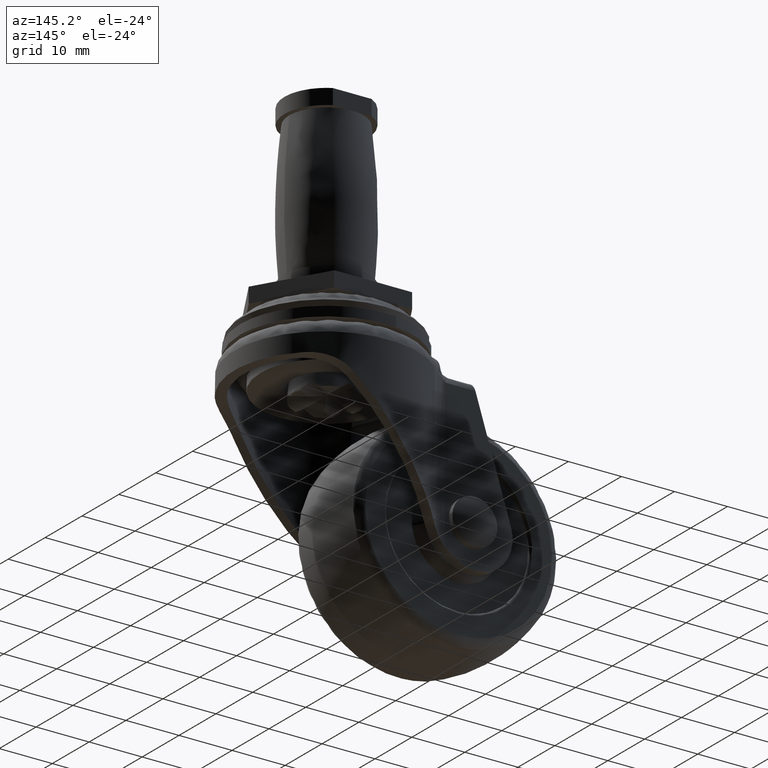
[diagram: clean part render]
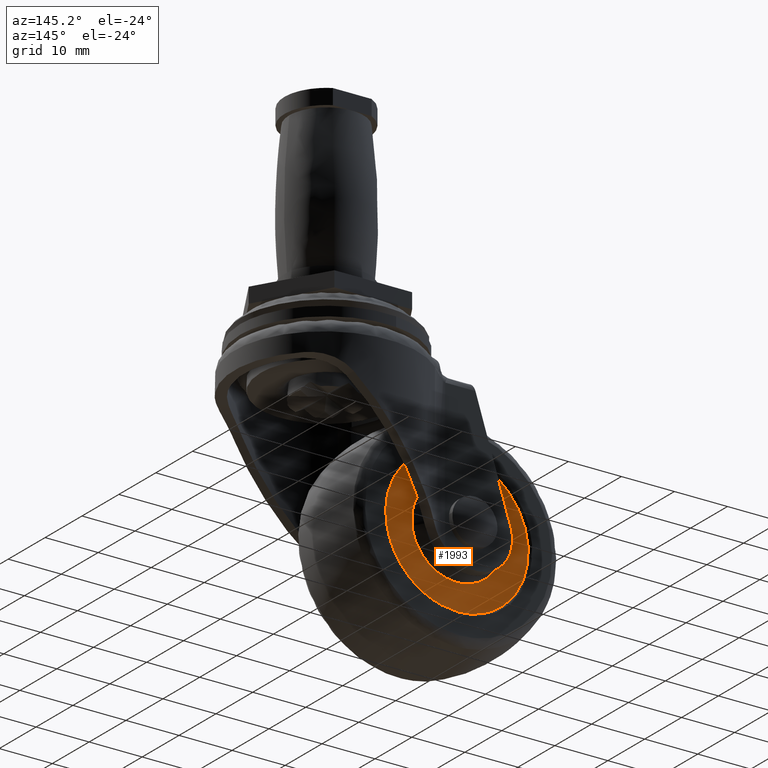
[diagram: same view with one face highlighted and labeled with its STEP entity id]
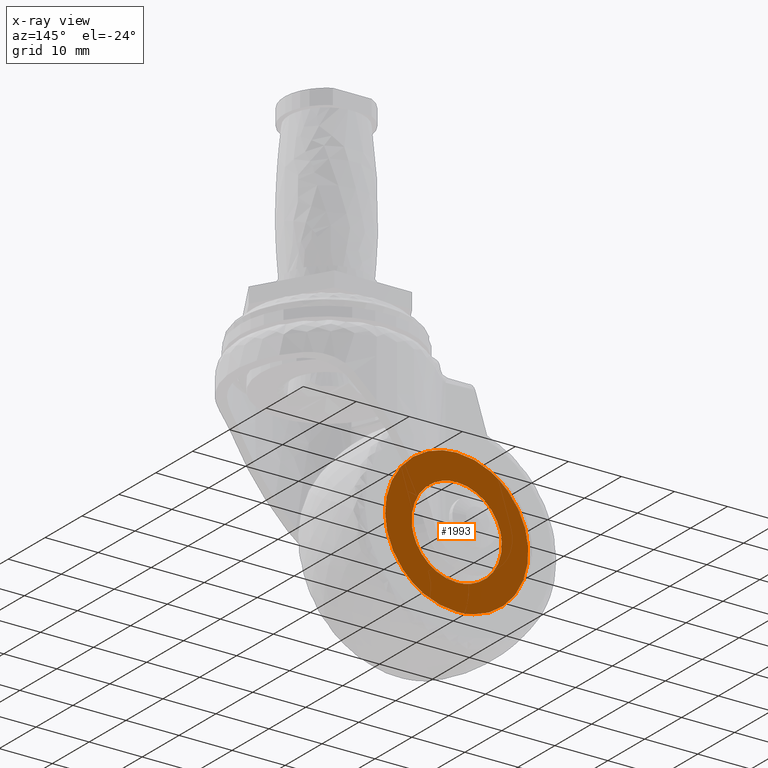
[diagram: x-ray of the same camera — body ghosted, the highlighted face saturated]
A machine part, auxiliary view. The second image highlights one B-rep face of the part: STEP entity #1993.
The next image is the same camera in x-ray: the body ghosted, the highlighted face saturated — about 0% of this face is hidden behind the body in this view.
In plain terms, the highlighted face is a freeform B-spline surface patch.
Its self-contained STEP definition (entity closure, byte-faithful):
#479=CARTESIAN_POINT('',(-8.845698039391664,7.999986000000090,-44.896091317653713));
#480=VERTEX_POINT('',#479);
#486=CARTESIAN_POINT('',(-19.0,7.999986000000090,-22.499981000000400));
#487=VERTEX_POINT('',#486);
#488=CARTESIAN_POINT('',(-8.845698039391664,7.999986000000090,-44.896091317653699));
#489=CARTESIAN_POINT('',(-5.499986000000200,7.999986000000091,-41.077183663315203));
#490=CARTESIAN_POINT('',(-5.499986000000200,7.999986000000090,-35.999995000000197));
#491=CARTESIAN_POINT('',(-5.499986000000199,7.999986000000090,-22.499981000000400));
#492=CARTESIAN_POINT('',(-19.0,7.999986000000090,-22.499981000000400));
#500=(BOUNDED_CURVE()B_SPLINE_CURVE(2,(#488,#489,#490,#491,#492),.UNSPECIFIED.,.F.,.U.)B_SPLINE_CURVE_WITH_KNOTS((3,2,3),(0.134954751792486,0.250000000000000,0.500000000000000),.UNSPECIFIED.)CURVE()GEOMETRIC_REPRESENTATION_ITEM()RATIONAL_B_SPLINE_CURVE((0.854482186231293,0.865216107773234,1.0,0.707106781186548,1.0))REPRESENTATION_ITEM(''));
#501=EDGE_CURVE('',#480,#487,#500,.T.);
#503=CARTESIAN_POINT('',(-28.628891070426558,7.999986000000090,-26.537710140937339));
#504=VERTEX_POINT('',#503);
#505=CARTESIAN_POINT('',(-19.0,7.999986000000090,-22.499981000000400));
#506=CARTESIAN_POINT('',(-24.661025730223479,7.999986000000090,-22.499981000000396));
#507=CARTESIAN_POINT('',(-28.628891070426551,7.999986000000090,-26.537710140937335));
#515=(BOUNDED_CURVE()B_SPLINE_CURVE(2,(#505,#506,#507),.UNSPECIFIED.,.F.,.U.)B_SPLINE_CURVE_WITH_KNOTS((3,3),(0.500000000000000,0.626316758271658),.UNSPECIFIED.)CURVE()GEOMETRIC_REPRESENTATION_ITEM()RATIONAL_B_SPLINE_CURVE((1.0,0.852010712318933,0.853569641268300))REPRESENTATION_ITEM(''));
#516=EDGE_CURVE('',#487,#504,#515,.T.);
#624=CARTESIAN_POINT('',(-19.0,7.999986000000090,-49.500008999999999));
#625=VERTEX_POINT('',#624);
#626=CARTESIAN_POINT('',(-28.628891070426558,7.999986000000090,-26.537710140937342));
#627=CARTESIAN_POINT('',(-32.500013999999787,7.999986000000090,-30.476993488715241));
#628=CARTESIAN_POINT('',(-32.500013999999801,7.999986000000090,-35.999995000000197));
#629=CARTESIAN_POINT('',(-32.500013999999801,7.999986000000090,-49.500009000000013));
#630=CARTESIAN_POINT('',(-19.0,7.999986000000090,-49.500008999999999));
#638=(BOUNDED_CURVE()B_SPLINE_CURVE(2,(#626,#627,#628,#629,#630),.UNSPECIFIED.,.F.,.U.)B_SPLINE_CURVE_WITH_KNOTS((3,2,3),(0.626316758271659,0.750000000000000,1.0),.UNSPECIFIED.)CURVE()GEOMETRIC_REPRESENTATION_ITEM()RATIONAL_B_SPLINE_CURVE((0.853569641268300,0.855096068867615,1.0,0.707106781186548,1.0))REPRESENTATION_ITEM(''));
#639=EDGE_CURVE('',#504,#625,#638,.T.);
#641=CARTESIAN_POINT('',(-19.0,7.999986000000090,-49.500008999999999));
#642=CARTESIAN_POINT('',(-12.879150589806370,7.999986000000090,-49.500008999999999));
#643=CARTESIAN_POINT('',(-8.845698039391664,7.999986000000090,-44.896091317653699));
#651=(BOUNDED_CURVE()B_SPLINE_CURVE(2,(#641,#642,#643),.UNSPECIFIED.,.F.,.U.)B_SPLINE_CURVE_WITH_KNOTS((3,3),(0.0,0.134954751792486),.UNSPECIFIED.)CURVE()GEOMETRIC_REPRESENTATION_ITEM()RATIONAL_B_SPLINE_CURVE((1.0,0.841890673413314,0.854482186231293))REPRESENTATION_ITEM(''));
#652=EDGE_CURVE('',#625,#480,#651,.T.);
#680=CARTESIAN_POINT('',(-10.559405123775560,7.999985999998128,-37.003287647077173));
#681=VERTEX_POINT('',#680);
#682=CARTESIAN_POINT('',(-19.0,7.999986000000090,-27.499981000000410));
#683=VERTEX_POINT('',#682);
#684=CARTESIAN_POINT('',(-10.559405123775552,7.999985999998128,-37.003287647077173));
#685=CARTESIAN_POINT('',(-10.499986000000209,7.999986000000090,-36.503400846194289));
#686=CARTESIAN_POINT('',(-10.499986000000209,7.999986000000090,-35.999995000000197));
#687=CARTESIAN_POINT('',(-10.499986000000211,7.999986000000090,-27.499981000000417));
#688=CARTESIAN_POINT('',(-19.0,7.999986000000090,-27.499981000000410));
#696=(BOUNDED_CURVE()B_SPLINE_CURVE(2,(#684,#685,#686,#687,#688),.UNSPECIFIED.,.F.,.U.)B_SPLINE_CURVE_WITH_KNOTS((3,2,3),(0.229562473515042,0.250000000000000,0.500000000000000),.UNSPECIFIED.)CURVE()GEOMETRIC_REPRESENTATION_ITEM()RATIONAL_B_SPLINE_CURVE((0.956026754186706,0.976055948332942,1.0,0.707106781186547,1.0))REPRESENTATION_ITEM(''));
#697=EDGE_CURVE('',#681,#683,#696,.T.);
#738=CARTESIAN_POINT('',(-27.484159760482470,7.999985999982012,-35.481081559136570));
#739=VERTEX_POINT('',#738);
#745=CARTESIAN_POINT('',(-19.0,7.999986000000090,-27.499981000000410));
#746=CARTESIAN_POINT('',(-26.996014738324941,7.999986000000090,-27.499981000000428));
#747=CARTESIAN_POINT('',(-27.484159760482473,7.999985999982012,-35.481081559136570));
#755=(BOUNDED_CURVE()B_SPLINE_CURVE(2,(#745,#746,#747),.UNSPECIFIED.,.F.,.U.)B_SPLINE_CURVE_WITH_KNOTS((3,3),(0.500000000000000,0.739332962236407),.UNSPECIFIED.)CURVE()GEOMETRIC_REPRESENTATION_ITEM()RATIONAL_B_SPLINE_CURVE((1.0,0.719603993289681,0.976072041661283))REPRESENTATION_ITEM(''));
#756=EDGE_CURVE('',#683,#739,#755,.T.);
#779=CARTESIAN_POINT('',(-19.0,7.999986000000090,-44.500008999999991));
#780=VERTEX_POINT('',#779);
#781=CARTESIAN_POINT('',(-19.0,7.999986000000090,-44.500008999999991));
#782=CARTESIAN_POINT('',(-11.450504094997285,7.999986000000090,-44.500008999999999));
#783=CARTESIAN_POINT('',(-10.559405123775553,7.999985999998128,-37.003287647077180));
#791=(BOUNDED_CURVE()B_SPLINE_CURVE(2,(#781,#782,#783),.UNSPECIFIED.,.F.,.U.)B_SPLINE_CURVE_WITH_KNOTS((3,3),(0.0,0.229562473515042),.UNSPECIFIED.)CURVE()GEOMETRIC_REPRESENTATION_ITEM()RATIONAL_B_SPLINE_CURVE((1.0,0.731050832853606,0.956026754186706))REPRESENTATION_ITEM(''));
#792=EDGE_CURVE('',#780,#681,#791,.T.);
#794=CARTESIAN_POINT('',(-27.484159760482473,7.999985999982012,-35.481081559136570));
#795=CARTESIAN_POINT('',(-27.500013999999791,7.999986000000090,-35.740296084086424));
#796=CARTESIAN_POINT('',(-27.500013999999791,7.999986000000090,-35.999995000000197));
#797=CARTESIAN_POINT('',(-27.500013999999783,7.999986000000090,-44.500008999999999));
#798=CARTESIAN_POINT('',(-19.0,7.999986000000090,-44.500008999999991));
#806=(BOUNDED_CURVE()B_SPLINE_CURVE(2,(#794,#795,#796,#797,#798),.UNSPECIFIED.,.F.,.U.)B_SPLINE_CURVE_WITH_KNOTS((3,2,3),(0.739332962236408,0.750000000000000,1.0),.UNSPECIFIED.)CURVE()GEOMETRIC_REPRESENTATION_ITEM()RATIONAL_B_SPLINE_CURVE((0.976072041661284,0.987502787896867,1.0,0.707106781186547,1.0))REPRESENTATION_ITEM(''));
#807=EDGE_CURVE('',#739,#780,#806,.T.);
#1976=CARTESIAN_POINT('',(-33.848073088625270,7.999986000000090,-21.151329496737830));
#1977=CARTESIAN_POINT('',(-33.848073088625270,7.999986000000090,-50.848659054868193));
#1978=CARTESIAN_POINT('',(-4.158770574773357,7.999986000000090,-21.151329496737830));
#1979=CARTESIAN_POINT('',(-4.158770574773357,7.999986000000090,-50.848659054868193));
#1980=B_SPLINE_SURFACE_WITH_KNOTS('',1,1,((#1976,#1978),(#1977,#1979)),.UNSPECIFIED.,.F.,.F.,.U.,(2,2),(2,2),(0.0,29.697329558130360),(0.0,29.689302513851910),.UNSPECIFIED.);
#1981=ORIENTED_EDGE('',*,*,#639,.F.);
#1982=ORIENTED_EDGE('',*,*,#516,.F.);
#1983=ORIENTED_EDGE('',*,*,#501,.F.);
#1984=ORIENTED_EDGE('',*,*,#652,.F.);
#1985=EDGE_LOOP('',(#1981,#1982,#1983,#1984));
#1986=FACE_OUTER_BOUND('',#1985,.T.);
#1987=ORIENTED_EDGE('',*,*,#756,.T.);
#1988=ORIENTED_EDGE('',*,*,#807,.T.);
#1989=ORIENTED_EDGE('',*,*,#792,.T.);
#1990=ORIENTED_EDGE('',*,*,#697,.T.);
#1991=EDGE_LOOP('',(#1987,#1988,#1989,#1990));
#1992=FACE_BOUND('',#1991,.T.);
#1993=ADVANCED_FACE('',(#1986,#1992),#1980,.F.);